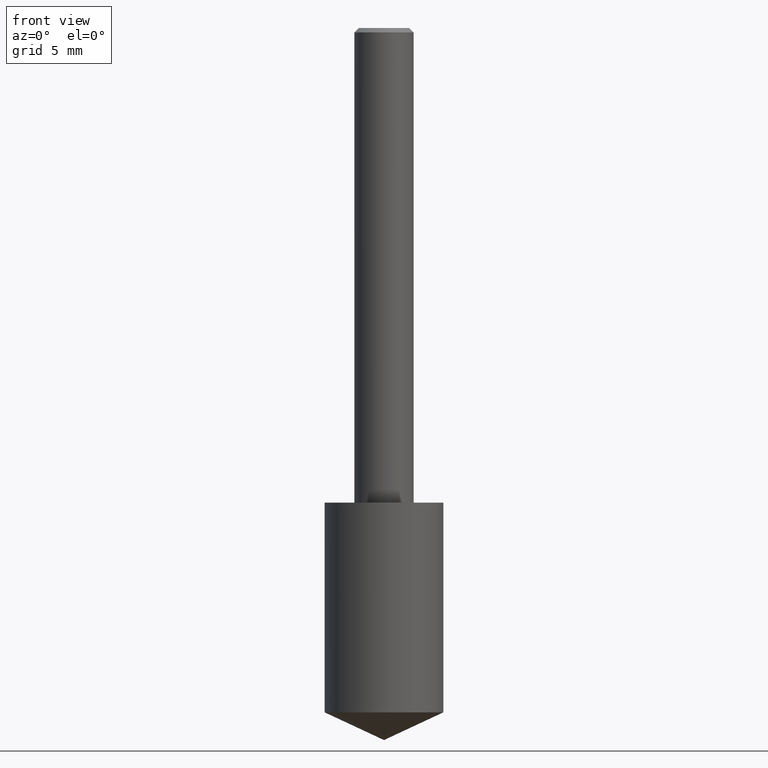
[diagram: clean part render]
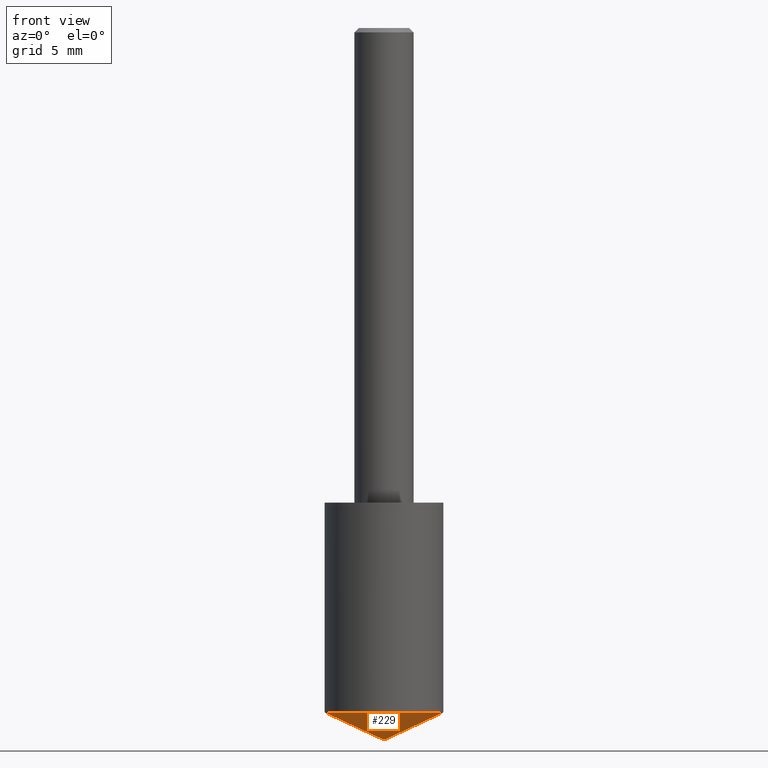
[diagram: same view with one face highlighted and labeled with its STEP entity id]
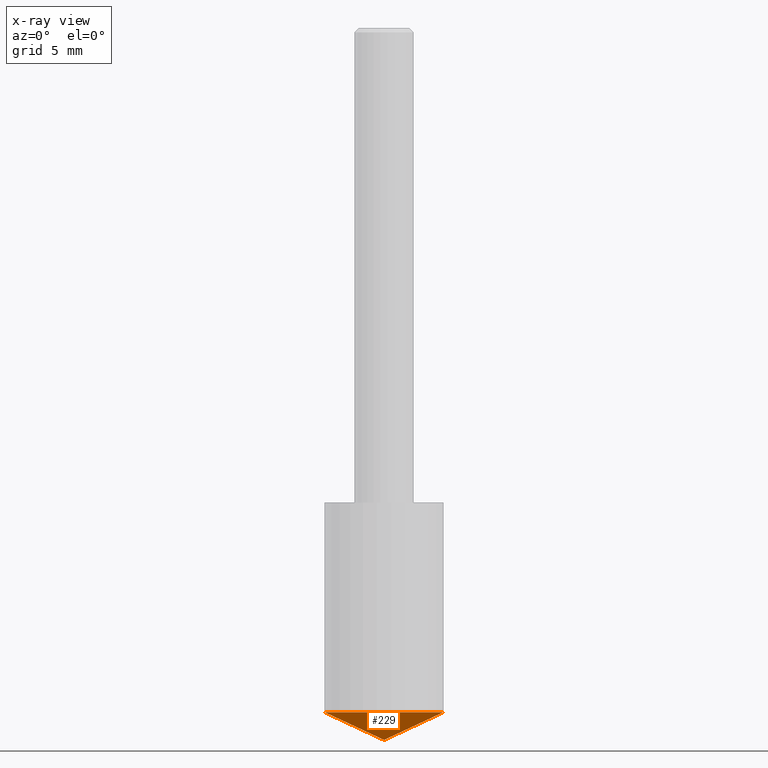
[diagram: x-ray of the same camera — body ghosted, the highlighted face saturated]
A machine part, front view. The second image highlights one B-rep face of the part: STEP entity #229.
The next image is the same camera in x-ray: the body ghosted, the highlighted face saturated — about 0% of this face is hidden behind the body in this view.
In plain terms, the highlighted conical surface has half-angle 65 deg.
Its self-contained STEP definition (entity closure, byte-faithful):
#26 = DIRECTION ( 'NONE',  ( -0.9063077870366507138, 7.915267918739014631E-15, 0.4226182617406978315 ) ) ;
#27 = CARTESIAN_POINT ( 'NONE',  ( 3.668203209277704895E-29, -5.237222008264718177E-15, -1.500000000000000222 ) ) ;
#35 = EDGE_LOOP ( 'NONE', ( #249, #115, #234 ) ) ;
#49 = VECTOR ( 'NONE', #310, 39.37007874015748143 ) ;
#51 = DIRECTION ( 'NONE',  ( -2.445468806185136597E-29, 3.491481338843145583E-15, 1.000000000000000000 ) ) ;
#53 = CARTESIAN_POINT ( 'NONE',  ( -0.1249999999999999861, -4.145530527738615868E-15, -1.441711542730625517 ) ) ;
#70 = CIRCLE ( 'NONE', #263, 0.1250000000000000000 ) ;
#77 = CARTESIAN_POINT ( 'NONE',  ( 0.1249999999999999861, -5.906579282149524440E-15, -1.441711542730625517 ) ) ;
#80 = EDGE_CURVE ( 'NONE', #111, #243, #70, .T. ) ;
#83 = AXIS2_PLACEMENT_3D ( 'NONE', #146, #206, #100 ) ;
#94 = CARTESIAN_POINT ( 'NONE',  ( 3.668203209277704895E-29, -5.237222008264718177E-15, -1.500000000000000222 ) ) ;
#100 = DIRECTION ( 'NONE',  ( 1.000000000000000000, -6.982962677686266711E-15, 0.000000000000000000 ) ) ;
#106 = EDGE_CURVE ( 'NONE', #309, #111, #279, .T. ) ;
#111 = VERTEX_POINT ( 'NONE', #53 ) ;
#115 = ORIENTED_EDGE ( 'NONE', *, *, #166, .T. ) ;
#124 = CARTESIAN_POINT ( 'NONE',  ( 3.668203209277704895E-29, -5.237222008264718177E-15, -1.500000000000000222 ) ) ;
#146 = CARTESIAN_POINT ( 'NONE',  ( -9.261009624683002666E-28, 1.322226732217803884E-13, 37.87007874015748143 ) ) ;
#152 = DIRECTION ( 'NONE',  ( 1.000000000000000000, -6.982962677686270655E-15, 0.000000000000000000 ) ) ;
#155 = VECTOR ( 'NONE', #26, 39.37007874015748143 ) ;
#166 = EDGE_CURVE ( 'NONE', #309, #243, #334, .T. ) ;
#199 = CARTESIAN_POINT ( 'NONE',  ( 3.525660605264793981E-29, -5.033708947438741890E-15, -1.441711542730625517 ) ) ;
#206 = DIRECTION ( 'NONE',  ( -2.445468806185136597E-29, 3.491481338843145583E-15, 1.000000000000000000 ) ) ;
#229 = ADVANCED_FACE ( 'NONE', ( #282 ), #266, .T. ) ;
#234 = ORIENTED_EDGE ( 'NONE', *, *, #80, .F. ) ;
#243 = VERTEX_POINT ( 'NONE', #77 ) ;
#249 = ORIENTED_EDGE ( 'NONE', *, *, #106, .F. ) ;
#263 = AXIS2_PLACEMENT_3D ( 'NONE', #199, #51, #152 ) ;
#266 = CONICAL_SURFACE ( 'NONE', #83, 84.42940631927434936, 1.134464013796316006 ) ;
#279 = LINE ( 'NONE', #124, #155 ) ;
#282 = FACE_OUTER_BOUND ( 'NONE', #35, .T. ) ;
#309 = VERTEX_POINT ( 'NONE', #27 ) ;
#310 = DIRECTION ( 'NONE',  ( 0.9063077870366507138, -4.853149677051390623E-15, 0.4226182617406978315 ) ) ;
#334 = LINE ( 'NONE', #94, #49 ) ;